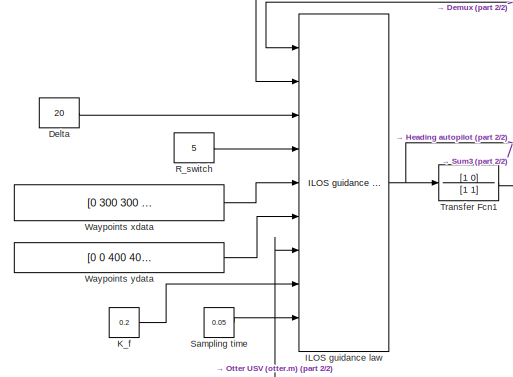
[diagram: root canvas - part 1/2, middle left region]
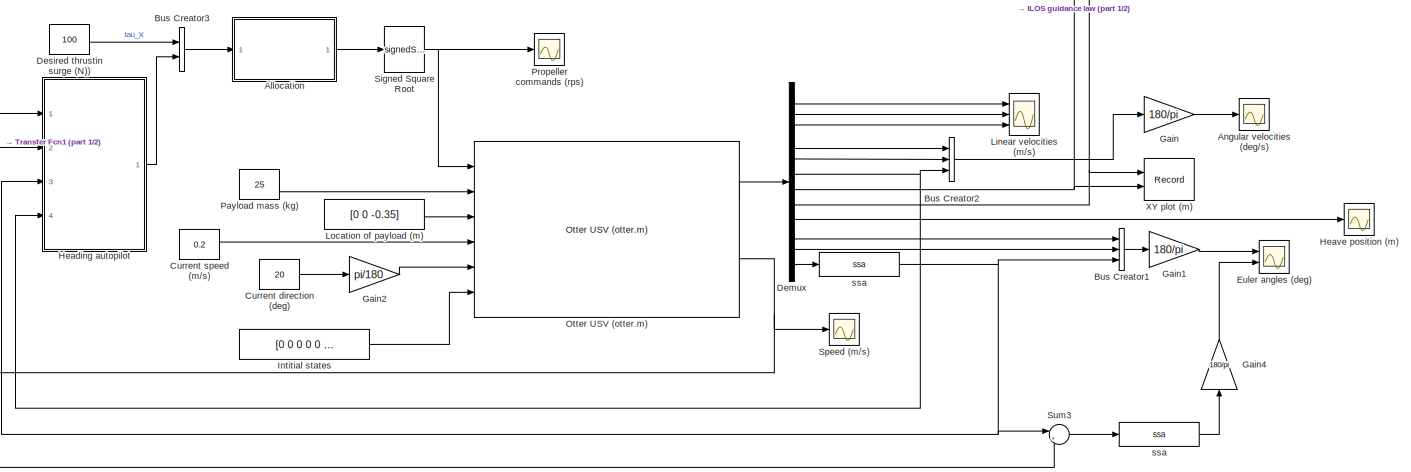
[diagram: root canvas - part 2/2, center side, full height]
MODEL slx_1ac67fc8944b
KIND model
CONFIG AbsTol = auto
CONFIG EnableMultiTasking = off
CONFIG FixedStep = 0.05
CONFIG MaxStep = auto
CONFIG MinStep = auto
CONFIG RelTol = 1e-3
CONFIG SampleTimeConstraint = Unconstrained
CONFIG SolverName = ode4
CONFIG StartTime = 0.0
CONFIG StopTime = 2000
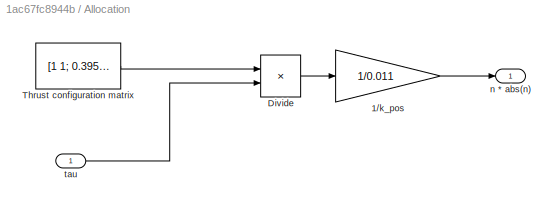
BLOCK [SubSystem] Allocation
  Ports = [1, 1]
  RequestExecContextInheritance = off
BLOCK [Gain] Allocation/1//k_pos
  Gain = 1/0.011
BLOCK [Product] Allocation/Divide
  Inputs = /*
  Multiplication = Matrix(*)
  Ports = [2, 1]
BLOCK [Constant] Allocation/Thrust configuration matrix
  Value = [1 1; 0.395 -0.395]
BLOCK [Outport] Allocation/n * abs(n)
BLOCK [Inport] Allocation/tau
BLOCK [Scope] Angular velocities (deg//s)
  Floating = off
  NumInputPorts = 1
  Ports = [1]
  ScopeSpecificationString = Simulink.scopes.TimeScopeBlockCfg('CurrentConfiguration', extmgr.ConfigurationSet(extmgr.Configuration('Core','General UI',true),extmgr.Configuration('Core','Source UI',true),extmgr.Configuration('Sources','WiredSimulink',true,'DataLoggingVariableName','ScopeData3'),extmgr.Configuration('Visuals','Time Domain',true,'SerializedDisplays',{struct('MinYLimReal','-38.02881','MaxYLimReal','18.97456','YL...<+1463ch>
BLOCK [BusCreator] Bus Creator1
  DisplayOption = bar
  InheritFromInputs = on
  Inputs = 3
  Ports = [3, 1]
BLOCK [BusCreator] Bus Creator2
  DisplayOption = bar
  InheritFromInputs = on
  Inputs = 3
  Ports = [3, 1]
BLOCK [BusCreator] Bus Creator3
  DisplayOption = bar
  InheritFromInputs = on
  Inputs = 2
  Ports = [2, 1]
BLOCK [Constant] Current direction (deg)
  Value = 20
BLOCK [Constant] Current speed (m//s)
  Value = 0.2
BLOCK [Constant] Delta
  Value = 20
BLOCK [Demux] Demux
  Outputs = 12
  Ports = [1, 12]
BLOCK [Constant] Desired thrustin surge (N))
  Value = 100
BLOCK [Scope] Euler angles (deg)
  Floating = off
  NumInputPorts = 2
  Ports = [2]
  ScopeSpecificationString = Simulink.scopes.TimeScopeBlockCfg('CurrentConfiguration', extmgr.ConfigurationSet(extmgr.Configuration('Core','General UI',true),extmgr.Configuration('Core','Source UI',true),extmgr.Configuration('Sources','WiredSimulink',true,'DataLoggingVariableName','ScopeData1'),extmgr.Configuration('Visuals','Time Domain',true,'SerializedDisplays',{struct('MinYLimReal','-224.99961','MaxYLimReal','224.99874','...<+2176ch>
BLOCK [Gain] Gain
  Gain = 180/pi
BLOCK [Gain] Gain1
  Gain = 180/pi
BLOCK [Gain] Gain2
  Gain = pi/180
BLOCK [Gain] Gain4
  Gain = 180/pi
  NameLocation = right
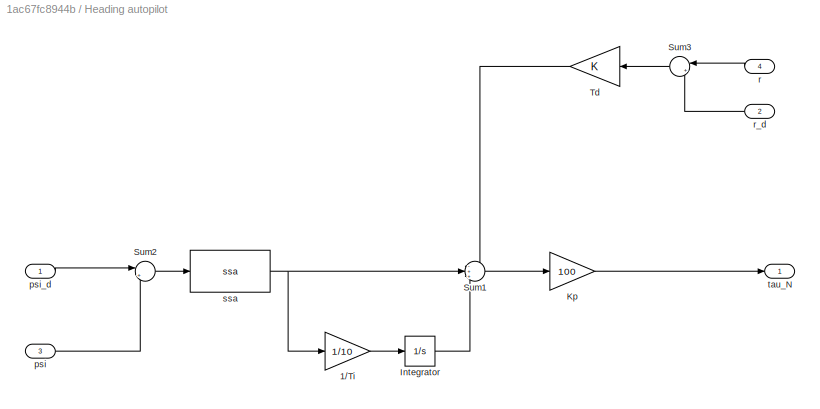
BLOCK [SubSystem] Heading autopilot
  Ports = [4, 1]
  RequestExecContextInheritance = off
BLOCK [Gain] Heading autopilot/1//Ti
  Gain = 1/10
  NameLocation = top
  OutDataTypeStr = Inherit: Same as input
  ParamDataTypeStr = Inherit: Same as input
  SaturateOnIntegerOverflow = on
BLOCK [Integrator] Heading autopilot/Integrator
  Ports = [1, 1]
BLOCK [Gain] Heading autopilot/Kp
  Gain = 100
  NameLocation = top
  OutDataTypeStr = Inherit: Same as input
  ParamDataTypeStr = Inherit: Same as input
  SaturateOnIntegerOverflow = on
BLOCK [Sum] Heading autopilot/Sum1
  InputSameDT = on
  Inputs = -++
  OutDataTypeStr = Inherit: Same as first input
  Ports = [3, 1]
  SaturateOnIntegerOverflow = on
BLOCK [Sum] Heading autopilot/Sum2
  InputSameDT = on
  Inputs = |+-
  OutDataTypeStr = Inherit: Same as first input
  Ports = [2, 1]
  SaturateOnIntegerOverflow = on
BLOCK [Sum] Heading autopilot/Sum3
  InputSameDT = on
  Inputs = |+-
  NameLocation = top
  OutDataTypeStr = Inherit: Same as first input
  Ports = [2, 1]
  SaturateOnIntegerOverflow = on
BLOCK [Gain] Heading autopilot/Td
  NameLocation = top
  OutDataTypeStr = Inherit: Same as input
  ParamDataTypeStr = Inherit: Same as input
  SaturateOnIntegerOverflow = on
BLOCK [Inport] Heading autopilot/psi
  Port = 3
BLOCK [Inport] Heading autopilot/psi_d
BLOCK [Inport] Heading autopilot/r
  NameLocation = top
  Port = 4
BLOCK [Inport] Heading autopilot/r_d
  NameLocation = top
  Port = 2
BLOCK [Reference] Heading autopilot/ssa   REF=mssSimulink/Utilities/Math Operations/ssa
  Ports = [1, 1]
  SourceBlock = mssSimulink/Utilities/Math Operations/ssa
  SourceType = SubSystem
BLOCK [Outport] Heading autopilot/tau_N
BLOCK [Scope] Heave position (m)
  Floating = off
  NumInputPorts = 1
  Ports = [1]
  ScopeSpecificationString = Simulink.scopes.TimeScopeBlockCfg('CurrentConfiguration', extmgr.ConfigurationSet(extmgr.Configuration('Core','General UI',true),extmgr.Configuration('Core','Source UI',true),extmgr.Configuration('Sources','WiredSimulink',true,'DataLoggingVariableName','ScopeData4'),extmgr.Configuration('Visuals','Time Domain',true,'SerializedDisplays',{struct('MinYLimReal','-0.00826','MaxYLimReal','0.05423','YLab...<+1559ch>
BLOCK [Reference] ILOS guidance law  REF=mssSimulink/Guidance/ILOS guidance law for heading autopilot
  Ports = [9, 1]
  SourceBlock = mssSimulink/Guidance/ILOS guidance law for heading autopilot
  SourceType = SubSystem
BLOCK [Constant] Intitial states
  Value = [0 0 0 0 0 0 0 0 0 0 0 0]
BLOCK [Constant] K_f
  Value = 0.2
BLOCK [Scope] Linear velocities (m//s)
  Floating = off
  NumInputPorts = 3
  Ports = [3]
  ScopeSpecificationString = Simulink.scopes.TimeScopeBlockCfg('CurrentConfiguration', extmgr.ConfigurationSet(extmgr.Configuration('Core','General UI',true),extmgr.Configuration('Core','Source UI',true),extmgr.Configuration('Sources','WiredSimulink',true,'DataLoggingVariableName','ScopeData2'),extmgr.Configuration('Visuals','Time Domain',true,'SerializedDisplays',{struct('MinYLimReal','-0.18687','MaxYLimReal','1.68179','YLab...<+3092ch>
BLOCK [Constant] Location of payload (m)
  Value = [0 0 -0.35]
BLOCK [Reference] Otter USV (otter.m)   REF=mssSimulink/Marine craft models/Otter USV (otter.m)
  Ports = [6, 2]
  SourceBlock = mssSimulink/Marine craft models/Otter USV (otter.m)
BLOCK [Constant] Payload mass (kg)
  Value = 25
BLOCK [Scope] Propeller commands (rps)
  Floating = off
  NumInputPorts = 1
  Ports = [1]
  ScopeSpecificationString = Simulink.scopes.TimeScopeBlockCfg('CurrentConfiguration', extmgr.ConfigurationSet(extmgr.Configuration('Core','General UI',true),extmgr.Configuration('Core','Source UI',true),extmgr.Configuration('Sources','WiredSimulink',true,'DataLoggingVariableName','ScopeData1'),extmgr.Configuration('Visuals','Time Domain',true,'SerializedDisplays',{struct('MinYLimReal','-255.7154','MaxYLimReal','277.04513','Y...<+1489ch>
BLOCK [Constant] R_switch
  Value = 5
BLOCK [Constant] Sampling time
  Value = 0.05
BLOCK [Sqrt] Signed Square Root
  Operator = signedSqrt
BLOCK [Scope] Speed (m//s)
  Floating = off
  NumInputPorts = 1
  Ports = [1]
  ScopeSpecificationString = Simulink.scopes.TimeScopeBlockCfg('CurrentConfiguration', extmgr.ConfigurationSet(extmgr.Configuration('Core','General UI',true),extmgr.Configuration('Core','Source UI',true),extmgr.Configuration('Sources','WiredSimulink',true),extmgr.Configuration('Visuals','Time Domain',true,'SerializedDisplays',{struct('MinYLimReal','-0.19141','MaxYLimReal','1.72272','YLabelReal','','MinYLimMag','0.00000','MaxY...<+1416ch>
BLOCK [Sum] Sum3
  InputSameDT = on
  Inputs = |+-
  OutDataTypeStr = Inherit: Same as first input
  Ports = [2, 1]
  SaturateOnIntegerOverflow = on
BLOCK [TransferFcn] Transfer Fcn1
  Denominator = [1 1]
  Numerator = [1 0]
BLOCK [Constant] Waypoints xdata
  Value = [0 300 300 0 0 300 300 0 0 200 200]'
BLOCK [Constant] Waypoints ydata
  Value = [0 0 400 400 -100 -100 300 300 0 0 200]'
BLOCK [Record] XY plot (m)
  CompatibilityTag = XY
  FileSettingsInternal = {"entries":[{"content":{"excelSettings":{"content":{},"type":"Streamout.ExcelSettings"}},"type":"Streamout.FileSettingStorage","uuid":"745945b0-a711-439e-aabe-d4a51e3c09c3"}],"packageUris":["http://schema.mathworks.com/mf0/streamout_blocks/R2020a"],"version":"1.0"}
  Layout = [1 1]
  Ports = [2]
  SignalsInternal = {"entries":[{"content":{"signals":[{"content":{"blockPath":["demoOtterUSVPathFollowingHeadingControl/XY plot (m)"],"channel":[],"dimensions":[1],"domain":"demoOtterUSVPathFollowingHeadingControl/XY plot (m)","lineColor":"#a2142f","plots":[1],"port":1,"sid":[""],"signalID":477,"signalName":"Demux:8"},"type":"RecordBlkView.Signal","uuid":"d4be5b05-90d8-4c37-89c4-47c16635280c"},{"content":{"blockPath...<+497ch>
  VisualizationBindings = {"xyplotplugin":{"info":[{"series":[{"bindingParametersList":[{"parameter":"X-Axis","signalID":477,"signalName":"Demux:8"},{"parameter":"Y-Axis","signalID":481,"signalName":"Demux:7"}],"seriesID":17882}],"subplotID":1}]}}
  st = -1
BLOCK [Reference] ssa   REF=mssSimulink/Utilities/Math Operations/ssa
  Ports = [1, 1]
  SourceBlock = mssSimulink/Utilities/Math Operations/ssa
  SourceType = SubSystem
BLOCK [Reference] ssa     REF=mssSimulink/Utilities/Math Operations/ssa
  Ports = [1, 1]
  SourceBlock = mssSimulink/Utilities/Math Operations/ssa
  SourceType = SubSystem
LINE Allocation/1//k_pos:1 -> Allocation/n * abs(n):1
LINE Allocation/Divide:1 -> Allocation/1//k_pos:1
LINE Allocation/Thrust configuration matrix:1 -> Allocation/Divide:1
LINE Allocation/tau:1 -> Allocation/Divide:2
LINE Allocation:1 -> Signed Square Root:1
LINE Bus Creator1:1 -> Gain1:1
LINE Bus Creator2:1 -> Gain:1
LINE Bus Creator3:1 -> Allocation:1
LINE Current direction (deg):1 -> Gain2:1
LINE Current speed (m//s):1 -> Otter USV (otter.m) :4
LINE Delta:1 -> ILOS guidance law:3
LINE Demux:1 -> Linear velocities (m//s):1
LINE Demux:10 -> Bus Creator1:1
LINE Demux:11 -> Bus Creator1:2
LINE Demux:12 -> ssa   :1
LINE Demux:2 -> Linear velocities (m//s):2
LINE Demux:3 -> Linear velocities (m//s):3
LINE Demux:4 -> Bus Creator2:1
LINE Demux:5 -> Bus Creator2:2
NET Demux:6 -> Bus Creator2:3, Heading autopilot:4
NET Demux:7 -> ILOS guidance law:1, XY plot (m):2
NET Demux:8 -> ILOS guidance law:2, XY plot (m):1
LINE Demux:9 -> Heave position (m):1
LINE Desired thrustin surge (N)):1 -> Bus Creator3:1
LINE Gain1:1 -> Euler angles (deg):1
LINE Gain2:1 -> Otter USV (otter.m) :5
LINE Gain4:1 -> Euler angles (deg):2
LINE Gain:1 -> Angular velocities (deg//s):1
LINE Heading autopilot/1//Ti:1 -> Heading autopilot/Integrator:1
LINE Heading autopilot/Integrator:1 -> Heading autopilot/Sum1:3
LINE Heading autopilot/Kp:1 -> Heading autopilot/tau_N:1
LINE Heading autopilot/Sum1:1 -> Heading autopilot/Kp:1
LINE Heading autopilot/Sum2:1 -> Heading autopilot/ssa :1
LINE Heading autopilot/Sum3:1 -> Heading autopilot/Td:1
LINE Heading autopilot/Td:1 -> Heading autopilot/Sum1:1
LINE Heading autopilot/psi:1 -> Heading autopilot/Sum2:2
LINE Heading autopilot/psi_d:1 -> Heading autopilot/Sum2:1
LINE Heading autopilot/r:1 -> Heading autopilot/Sum3:1
LINE Heading autopilot/r_d:1 -> Heading autopilot/Sum3:2
NET Heading autopilot/ssa :1 -> Heading autopilot/1//Ti:1, Heading autopilot/Sum1:2
LINE Heading autopilot:1 -> Bus Creator3:2
NET ILOS guidance law:1 -> Heading autopilot:1, Sum3:2, Transfer Fcn1:1
LINE Intitial states:1 -> Otter USV (otter.m) :6
LINE K_f:1 -> ILOS guidance law:8
LINE Location of payload (m):1 -> Otter USV (otter.m) :3
LINE Otter USV (otter.m) :1 -> Demux:1
NET Otter USV (otter.m) :2 -> ILOS guidance law:7, Speed (m//s):1
LINE Payload mass (kg):1 -> Otter USV (otter.m) :2
LINE R_switch:1 -> ILOS guidance law:4
LINE Sampling time:1 -> ILOS guidance law:9
NET Signed Square Root:1 -> Otter USV (otter.m) :1, Propeller commands (rps):1
LINE Sum3:1 -> ssa :1
LINE Transfer Fcn1:1 -> Heading autopilot:2
LINE Waypoints xdata:1 -> ILOS guidance law:5
LINE Waypoints ydata:1 -> ILOS guidance law:6
NET ssa   :1 -> Bus Creator1:3, Heading autopilot:3, Sum3:1
LINE ssa :1 -> Gain4:1
note: NET lines group one-source signal fan-out (src -> all destinations, sorted); 1:1 wires keep LINE
